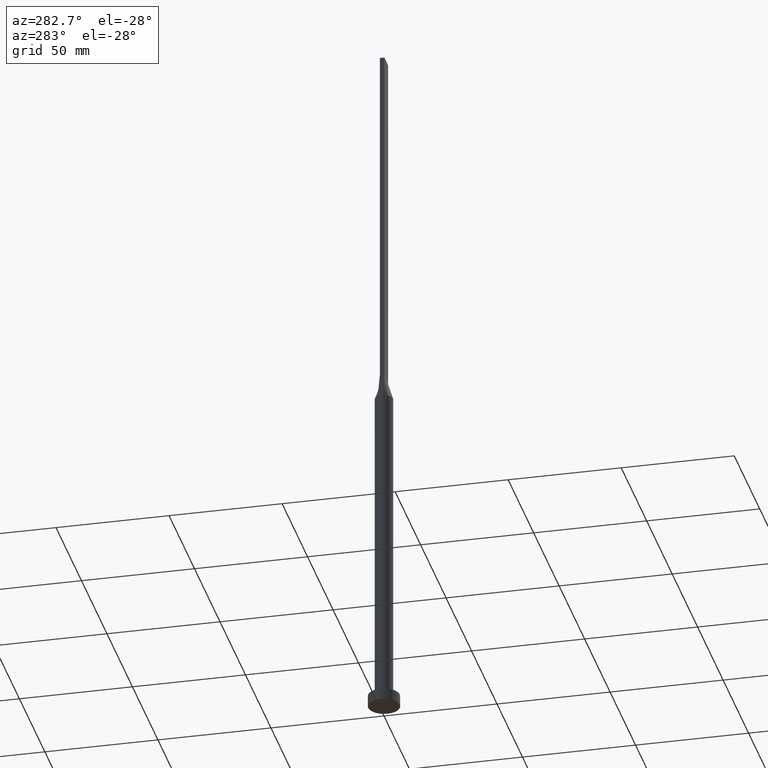
[diagram: clean part render]
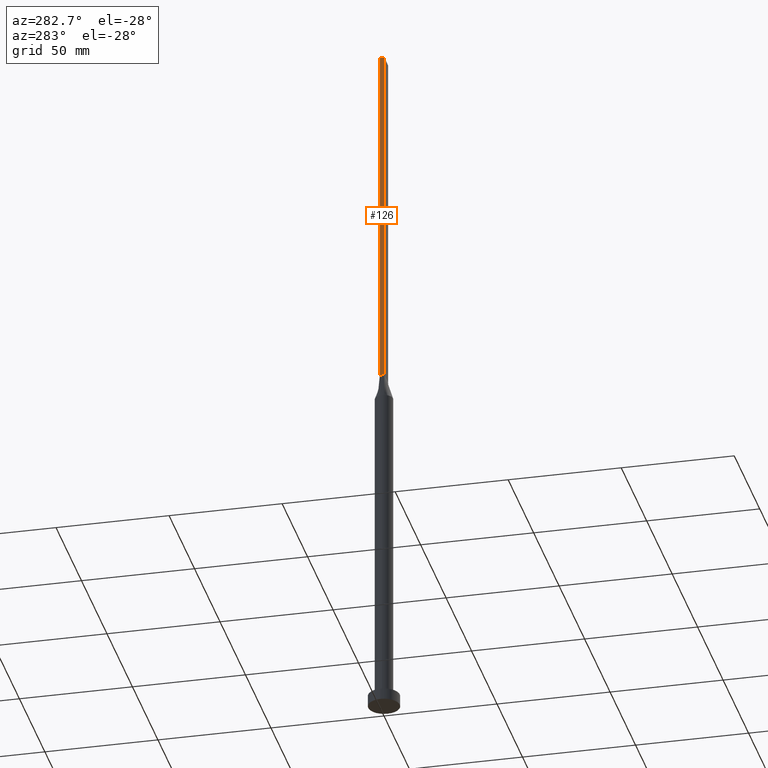
[diagram: same view with one face highlighted and labeled with its STEP entity id]
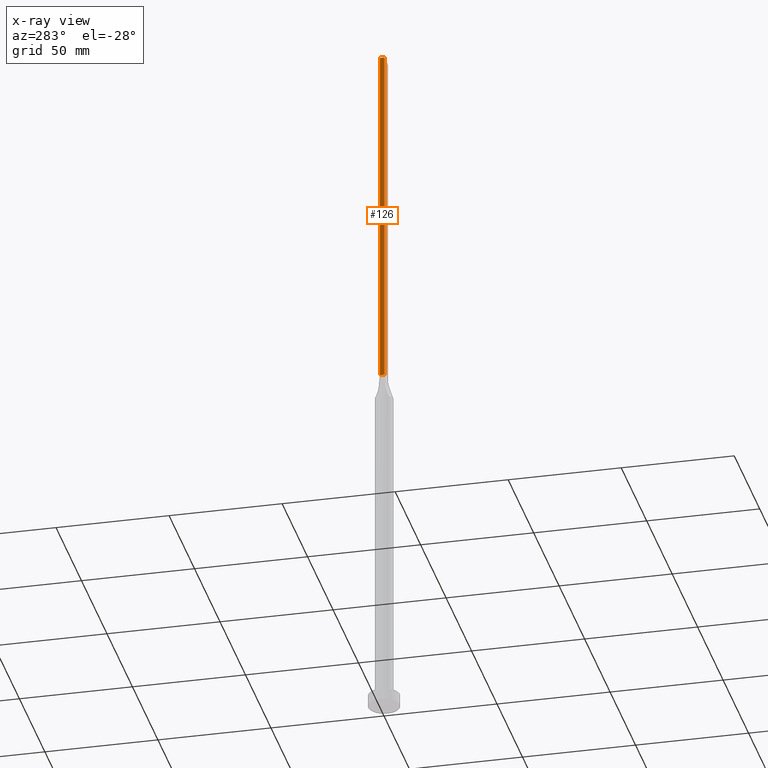
[diagram: x-ray of the same camera — body ghosted, the highlighted face saturated]
A machine part, auxiliary view. The second image highlights one B-rep face of the part: STEP entity #126.
The next image is the same camera in x-ray: the body ghosted, the highlighted face saturated — about 0% of this face is hidden behind the body in this view.
In plain terms, the highlighted planar face has unit normal (1, 0, -0).
Its self-contained STEP definition (entity closure, byte-faithful):
#9 = DIRECTION ( 'NONE',  ( -0.000000000000000000, -0.000000000000000000, -1.000000000000000000 ) ) ;
#10 = VECTOR ( 'NONE', #9, 1000.000000000000000 ) ;
#50 = EDGE_CURVE ( 'NONE', #492, #154, #249, .T. ) ;
#56 = ORIENTED_EDGE ( 'NONE', *, *, #50, .T. ) ;
#83 = LINE ( 'NONE', #442, #523 ) ;
#103 = VERTEX_POINT ( 'NONE', #570 ) ;
#126 = ADVANCED_FACE ( 'NONE', ( #204 ), #575, .F. ) ;
#154 = VERTEX_POINT ( 'NONE', #378 ) ;
#160 = CARTESIAN_POINT ( 'NONE',  ( -3.750000000000000000, 1.000000000000000000, 160.0000000000000000 ) ) ;
#204 = FACE_OUTER_BOUND ( 'NONE', #502, .T. ) ;
#208 = DIRECTION ( 'NONE',  ( -0.000000000000000000, 0.000000000000000000, -1.000000000000000000 ) ) ;
#209 = LINE ( 'NONE', #244, #237 ) ;
#210 = DIRECTION ( 'NONE',  ( -0.000000000000000000, -0.000000000000000000, -1.000000000000000000 ) ) ;
#228 = VECTOR ( 'NONE', #337, 1000.000000000000000 ) ;
#237 = VECTOR ( 'NONE', #429, 1000.000000000000000 ) ;
#244 = CARTESIAN_POINT ( 'NONE',  ( -3.750000000000000000, 1.000000000000000000, 315.0000000000000000 ) ) ;
#249 = LINE ( 'NONE', #160, #228 ) ;
#310 = ORIENTED_EDGE ( 'NONE', *, *, #406, .T. ) ;
#313 = AXIS2_PLACEMENT_3D ( 'NONE', #349, #526, #208 ) ;
#316 = EDGE_CURVE ( 'NONE', #423, #103, #209, .T. ) ;
#324 = ORIENTED_EDGE ( 'NONE', *, *, #544, .F. ) ;
#326 = CARTESIAN_POINT ( 'NONE',  ( -3.750000000000000000, 1.000000000000000000, 315.0000000000000000 ) ) ;
#337 = DIRECTION ( 'NONE',  ( 0.000000000000000000, -1.000000000000000000, 0.000000000000000000 ) ) ;
#349 = CARTESIAN_POINT ( 'NONE',  ( -3.750000000000000000, 1.000000000000000000, 315.0000000000000000 ) ) ;
#360 = CARTESIAN_POINT ( 'NONE',  ( -3.750000000000000000, 1.000000000000000000, 315.0000000000000000 ) ) ;
#376 = LINE ( 'NONE', #360, #10 ) ;
#378 = CARTESIAN_POINT ( 'NONE',  ( -3.750000000000000000, -0.9999999999999991118, 160.0000000000000000 ) ) ;
#380 = ORIENTED_EDGE ( 'NONE', *, *, #316, .F. ) ;
#406 = EDGE_CURVE ( 'NONE', #423, #492, #376, .T. ) ;
#423 = VERTEX_POINT ( 'NONE', #326 ) ;
#429 = DIRECTION ( 'NONE',  ( 0.000000000000000000, -1.000000000000000000, 0.000000000000000000 ) ) ;
#442 = CARTESIAN_POINT ( 'NONE',  ( -3.750000000000000000, -0.9999999999999991118, 315.0000000000000000 ) ) ;
#450 = CARTESIAN_POINT ( 'NONE',  ( -3.750000000000000000, 1.000000000000000000, 160.0000000000000000 ) ) ;
#492 = VERTEX_POINT ( 'NONE', #450 ) ;
#502 = EDGE_LOOP ( 'NONE', ( #56, #324, #380, #310 ) ) ;
#523 = VECTOR ( 'NONE', #210, 1000.000000000000000 ) ;
#526 = DIRECTION ( 'NONE',  ( 1.000000000000000000, 0.000000000000000000, -0.000000000000000000 ) ) ;
#544 = EDGE_CURVE ( 'NONE', #103, #154, #83, .T. ) ;
#570 = CARTESIAN_POINT ( 'NONE',  ( -3.750000000000000000, -0.9999999999999991118, 315.0000000000000000 ) ) ;
#575 = PLANE ( 'NONE',  #313 ) ;